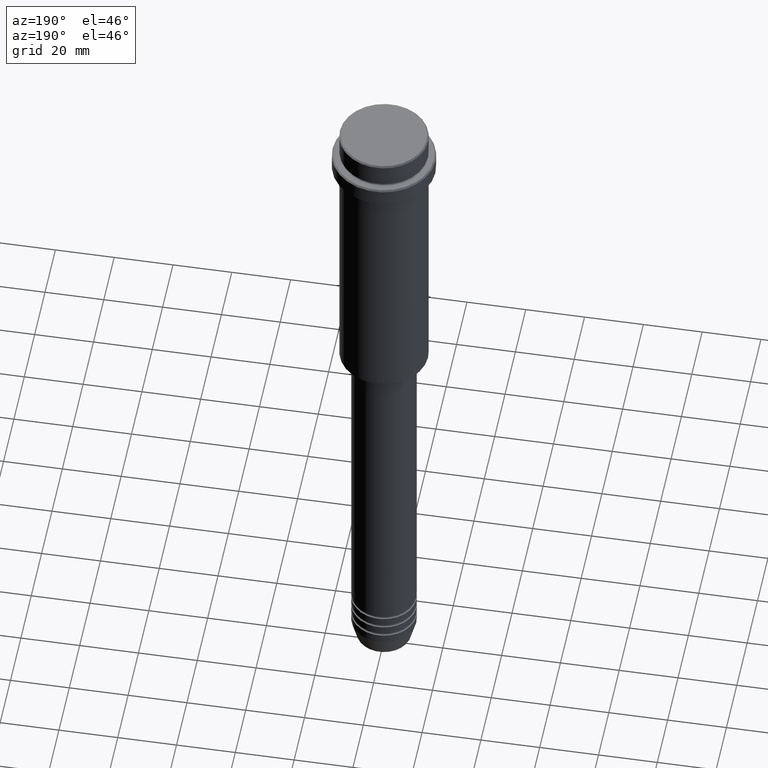
[diagram: clean part render]
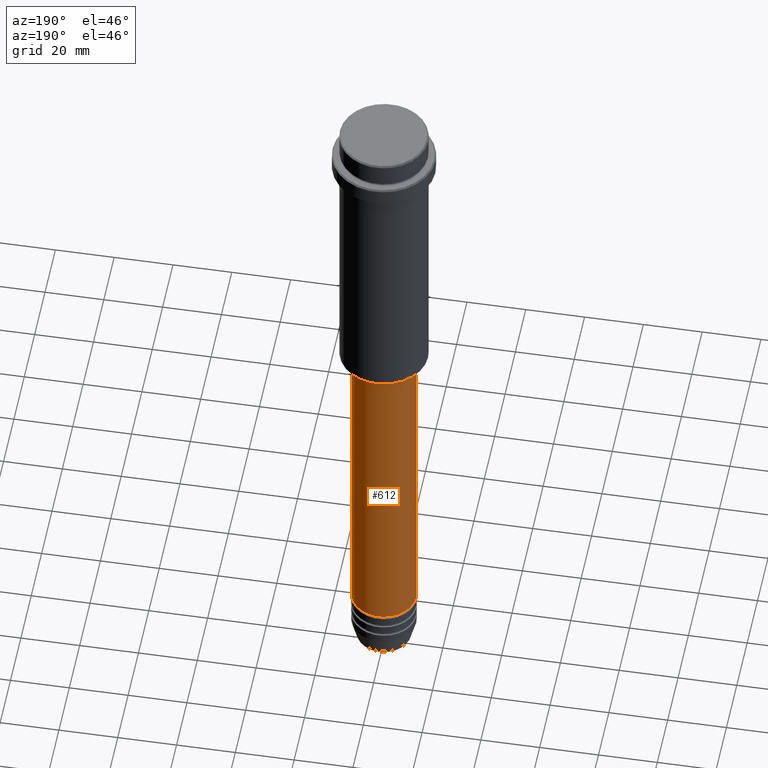
[diagram: same view with one face highlighted and labeled with its STEP entity id]
A machine part, auxiliary view. The second image highlights one B-rep face of the part: STEP entity #612.
In plain terms, the highlighted cylindrical surface (edge-blend (fillet) strip) has radius 11 mm, axis along (-0, -0, 1).
Its self-contained STEP definition (entity closure, byte-faithful):
#2 = ORIENTED_EDGE ( 'NONE', *, *, #523, .T. ) ;
#5 = VERTEX_POINT ( 'NONE', #140 ) ;
#41 = DIRECTION ( 'NONE',  ( 1.000000000000000000, 0.000000000000000000, 0.000000000000000000 ) ) ;
#140 = CARTESIAN_POINT ( 'NONE',  ( -10.99999999999999822, 1.347111479062088207E-15, -106.0000000000000142 ) ) ;
#201 = DIRECTION ( 'NONE',  ( 1.000000000000000000, 0.000000000000000000, 0.000000000000000000 ) ) ;
#208 = EDGE_LOOP ( 'NONE', ( #1023, #2, #386, #1167 ) ) ;
#282 = EDGE_CURVE ( 'NONE', #348, #989, #668, .T. ) ;
#338 = CARTESIAN_POINT ( 'NONE',  ( -11.00000000000000000, 1.347111479062088405E-15, -220.9999999999999432 ) ) ;
#348 = VERTEX_POINT ( 'NONE', #1298 ) ;
#384 = EDGE_CURVE ( 'NONE', #989, #5, #1030, .T. ) ;
#386 = ORIENTED_EDGE ( 'NONE', *, *, #384, .F. ) ;
#416 = CARTESIAN_POINT ( 'NONE',  ( 0.000000000000000000, 0.000000000000000000, 0.000000000000000000 ) ) ;
#420 = DIRECTION ( 'NONE',  ( 1.000000000000000000, 0.000000000000000000, 0.000000000000000000 ) ) ;
#423 = AXIS2_PLACEMENT_3D ( 'NONE', #913, #917, #41 ) ;
#438 = CARTESIAN_POINT ( 'NONE',  ( 11.00000000000000000, 0.000000000000000000, 0.000000000000000000 ) ) ;
#523 = EDGE_CURVE ( 'NONE', #702, #5, #626, .T. ) ;
#612 = ADVANCED_FACE ( 'NONE', ( #1383 ), #1389, .T. ) ;
#626 = LINE ( 'NONE', #743, #673 ) ;
#668 = LINE ( 'NONE', #438, #946 ) ;
#673 = VECTOR ( 'NONE', #833, 1000.000000000000000 ) ;
#698 = EDGE_CURVE ( 'NONE', #348, #702, #832, .T. ) ;
#702 = VERTEX_POINT ( 'NONE', #338 ) ;
#743 = CARTESIAN_POINT ( 'NONE',  ( -11.00000000000000000, 1.347111479062088405E-15, 0.000000000000000000 ) ) ;
#832 = CIRCLE ( 'NONE', #1067, 11.00000000000000000 ) ;
#833 = DIRECTION ( 'NONE',  ( -0.000000000000000000, -0.000000000000000000, 1.000000000000000000 ) ) ;
#882 = DIRECTION ( 'NONE',  ( -0.000000000000000000, -0.000000000000000000, 1.000000000000000000 ) ) ;
#913 = CARTESIAN_POINT ( 'NONE',  ( 0.000000000000000000, 0.000000000000000000, -106.0000000000000142 ) ) ;
#917 = DIRECTION ( 'NONE',  ( -0.000000000000000000, -0.000000000000000000, 1.000000000000000000 ) ) ;
#946 = VECTOR ( 'NONE', #882, 1000.000000000000000 ) ;
#948 = AXIS2_PLACEMENT_3D ( 'NONE', #416, #1266, #420 ) ;
#989 = VERTEX_POINT ( 'NONE', #1156 ) ;
#1023 = ORIENTED_EDGE ( 'NONE', *, *, #698, .T. ) ;
#1030 = CIRCLE ( 'NONE', #423, 10.99999999999999822 ) ;
#1067 = AXIS2_PLACEMENT_3D ( 'NONE', #1071, #1317, #201 ) ;
#1071 = CARTESIAN_POINT ( 'NONE',  ( 0.000000000000000000, 0.000000000000000000, -220.9999999999999432 ) ) ;
#1156 = CARTESIAN_POINT ( 'NONE',  ( 10.99999999999999822, 0.000000000000000000, -106.0000000000000142 ) ) ;
#1167 = ORIENTED_EDGE ( 'NONE', *, *, #282, .F. ) ;
#1266 = DIRECTION ( 'NONE',  ( -0.000000000000000000, -0.000000000000000000, 1.000000000000000000 ) ) ;
#1298 = CARTESIAN_POINT ( 'NONE',  ( 11.00000000000000000, 0.000000000000000000, -220.9999999999999432 ) ) ;
#1317 = DIRECTION ( 'NONE',  ( -0.000000000000000000, -0.000000000000000000, 1.000000000000000000 ) ) ;
#1383 = FACE_OUTER_BOUND ( 'NONE', #208, .T. ) ;
#1389 = CYLINDRICAL_SURFACE ( 'NONE', #948, 11.00000000000000000 ) ;